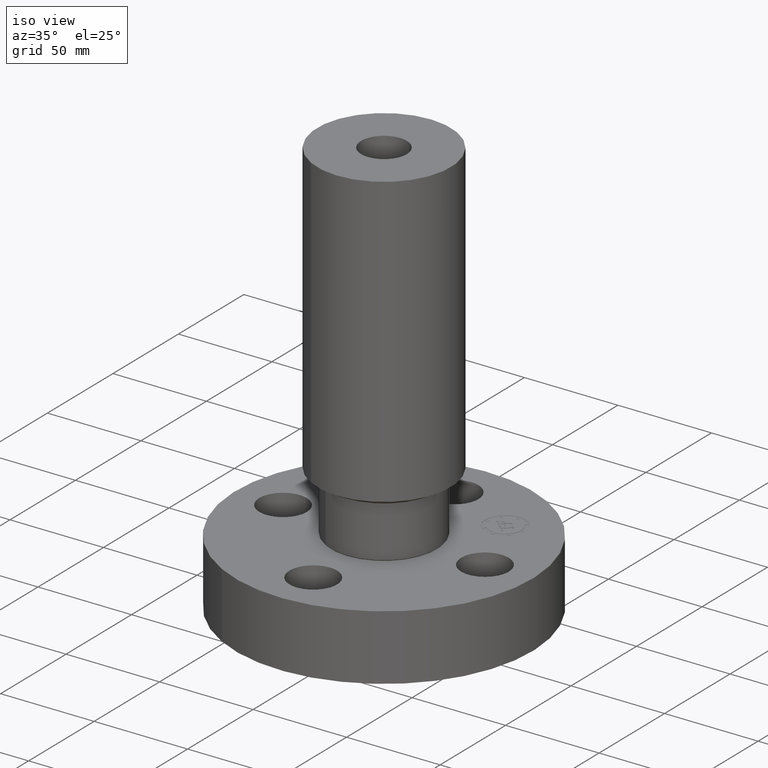
[diagram: clean part render]
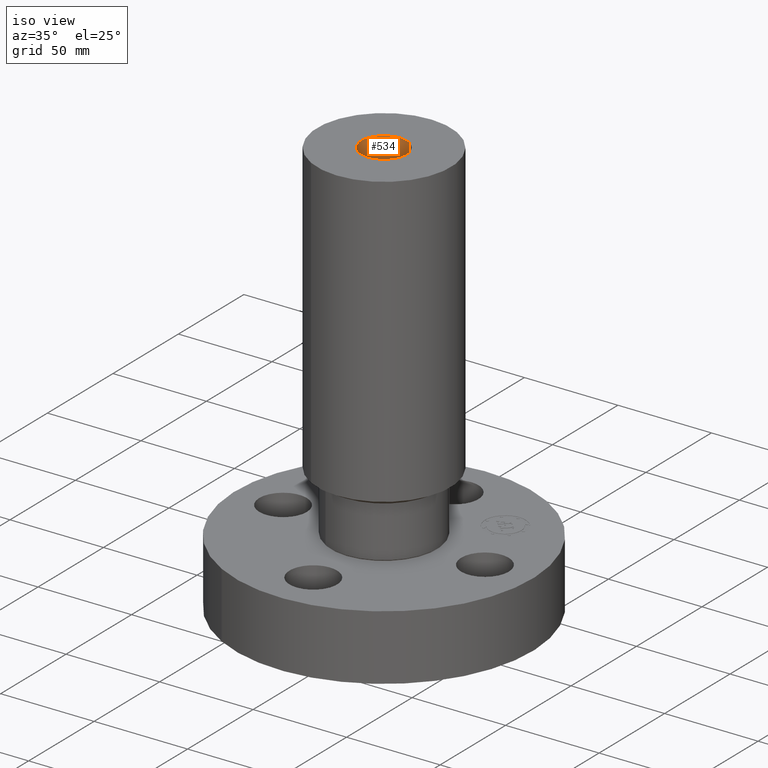
[diagram: same view with one face highlighted and labeled with its STEP entity id]
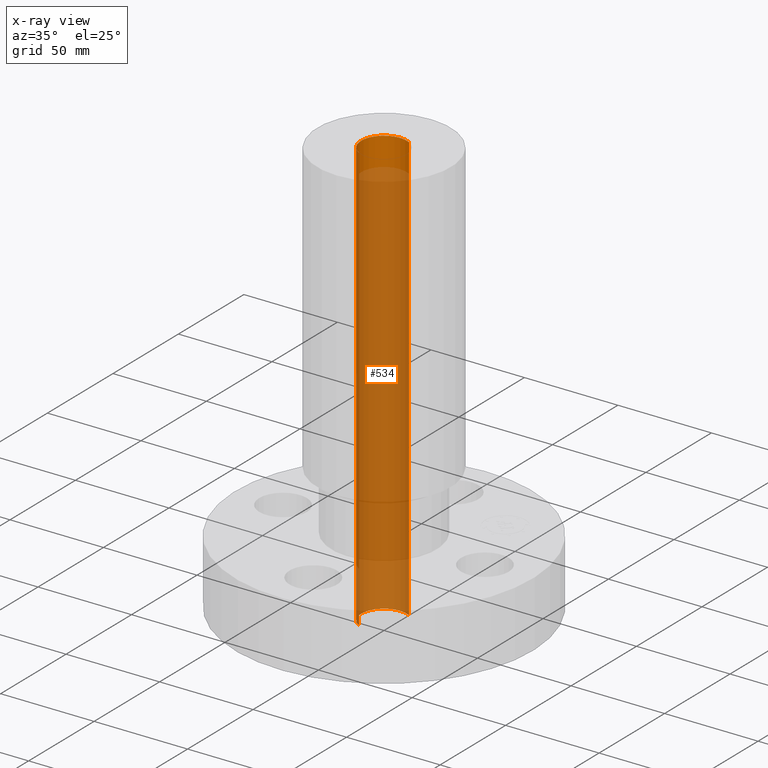
[diagram: x-ray of the same camera — body ghosted, the highlighted face saturated]
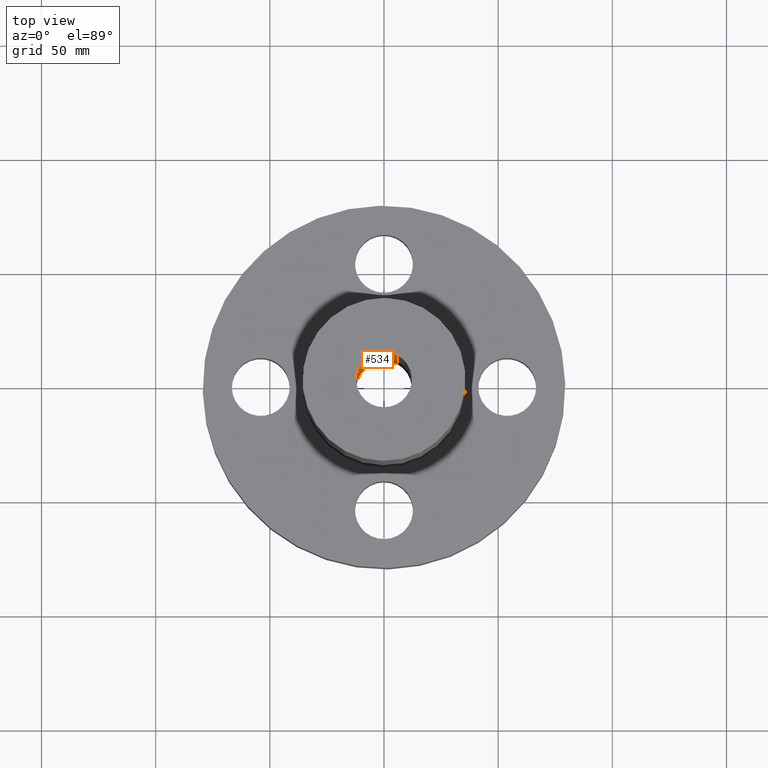
[diagram: same view with one face highlighted and labeled with its STEP entity id]
A machine part, iso view. The second image highlights one B-rep face of the part: STEP entity #534.
The next image is the same camera in x-ray: the body ghosted, the highlighted face saturated — about 90% of this face is hidden behind the body in this view.
A second angle (top view) of the same face is appended — the face is thin or edge-on in the first view.
In plain terms, the highlighted cylindrical surface (edge-blend (fillet) strip) has radius 12.192 mm, axis along (0, 0, -1).
Its self-contained STEP definition (entity closure, byte-faithful):
#475=AXIS2_PLACEMENT_3D('Circle Axis2P3D',#473,#474,$) ;
#495=AXIS2_PLACEMENT_3D('Cylinder Axis2P3D',#492,#493,#494) ;
#525=AXIS2_PLACEMENT_3D('Circle Axis2P3D',#523,#524,$) ;
#473=CARTESIAN_POINT('Axis2P3D Location',(0.,0.,8.75000000003)) ;
#477=CARTESIAN_POINT('Vertex',(-0.230124258531,-0.421239629709,8.75000000004)) ;
#479=CARTESIAN_POINT('Vertex',(0.230124258531,0.421239629709,8.75000000004)) ;
#492=CARTESIAN_POINT('Axis2P3D Location',(0.,0.,4.25000000002)) ;
#497=CARTESIAN_POINT('Line Origine',(0.230124258531,0.421239629709,4.25000000002)) ;
#501=CARTESIAN_POINT('Vertex',(0.230124258531,0.421239629709,-0.250000000001)) ;
#508=CARTESIAN_POINT('Vertex',(-0.230124258531,-0.421239629709,-0.250000000001)) ;
#511=CARTESIAN_POINT('Line Origine',(-0.230124258531,-0.421239629709,4.25000000002)) ;
#523=CARTESIAN_POINT('Axis2P3D Location',(0.,0.,-0.250000000001)) ;
#474=DIRECTION('Axis2P3D Direction',(0.,0.,-0.0393700787402)) ;
#493=DIRECTION('Axis2P3D Direction',(0.,0.,-0.0393700787402)) ;
#494=DIRECTION('Axis2P3D XDirection',(-0.0188750212049,-0.0345504945626,0.)) ;
#498=DIRECTION('Vector Direction',(0.,0.,-0.0393700787402)) ;
#512=DIRECTION('Vector Direction',(0.,0.,-0.0393700787402)) ;
#524=DIRECTION('Axis2P3D Direction',(0.,0.,-0.0393700787402)) ;
#499=VECTOR('Line Direction',#498,0.0393700787402) ;
#513=VECTOR('Line Direction',#512,0.0393700787402) ;
#529=ORIENTED_EDGE('',*,*,#481,.F.) ;
#530=ORIENTED_EDGE('',*,*,#515,.T.) ;
#531=ORIENTED_EDGE('',*,*,#527,.T.) ;
#532=ORIENTED_EDGE('',*,*,#503,.F.) ;
#534=ADVANCED_FACE('PartBody',(#533),#496,.F.) ;
#476=CIRCLE('generated circle',#475,0.480000000002) ;
#526=CIRCLE('generated circle',#525,0.480000000002) ;
#496=CYLINDRICAL_SURFACE('generated cylinder',#495,0.480000000002) ;
#481=EDGE_CURVE('',#478,#480,#476,.T.) ;
#503=EDGE_CURVE('',#480,#502,#500,.T.) ;
#515=EDGE_CURVE('',#478,#509,#514,.T.) ;
#527=EDGE_CURVE('',#509,#502,#526,.T.) ;
#528=EDGE_LOOP('',(#529,#530,#531,#532)) ;
#533=FACE_OUTER_BOUND('',#528,.T.) ;
#500=LINE('Line',#497,#499) ;
#514=LINE('Line',#511,#513) ;
#478=VERTEX_POINT('',#477) ;
#480=VERTEX_POINT('',#479) ;
#502=VERTEX_POINT('',#501) ;
#509=VERTEX_POINT('',#508) ;